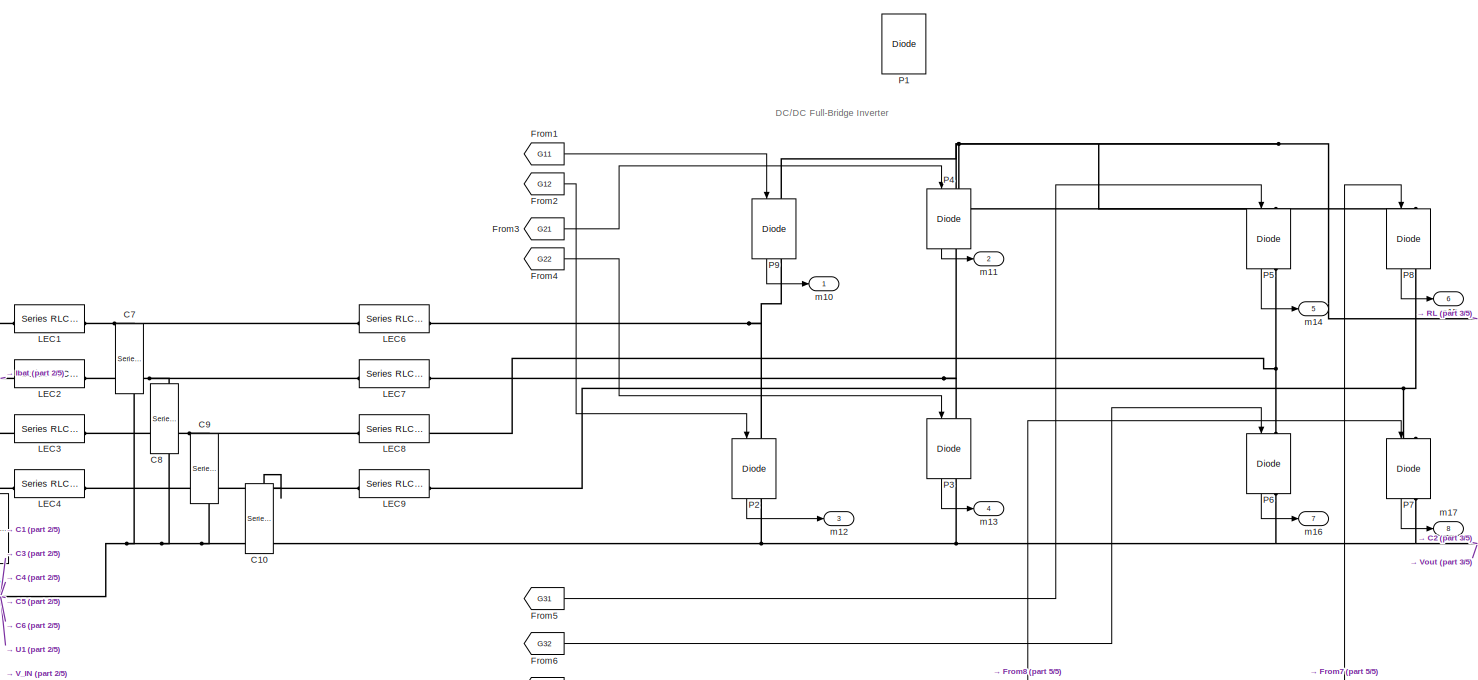
[diagram: root canvas - part 1/5, top center region]
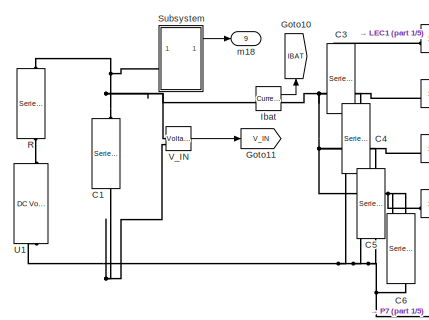
[diagram: root canvas - part 2/5, middle left region]
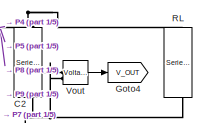
[diagram: root canvas - part 3/5, top right region]
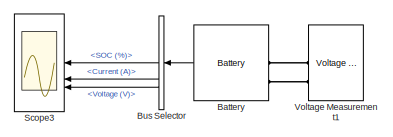
[diagram: root canvas - part 4/5, middle left region]
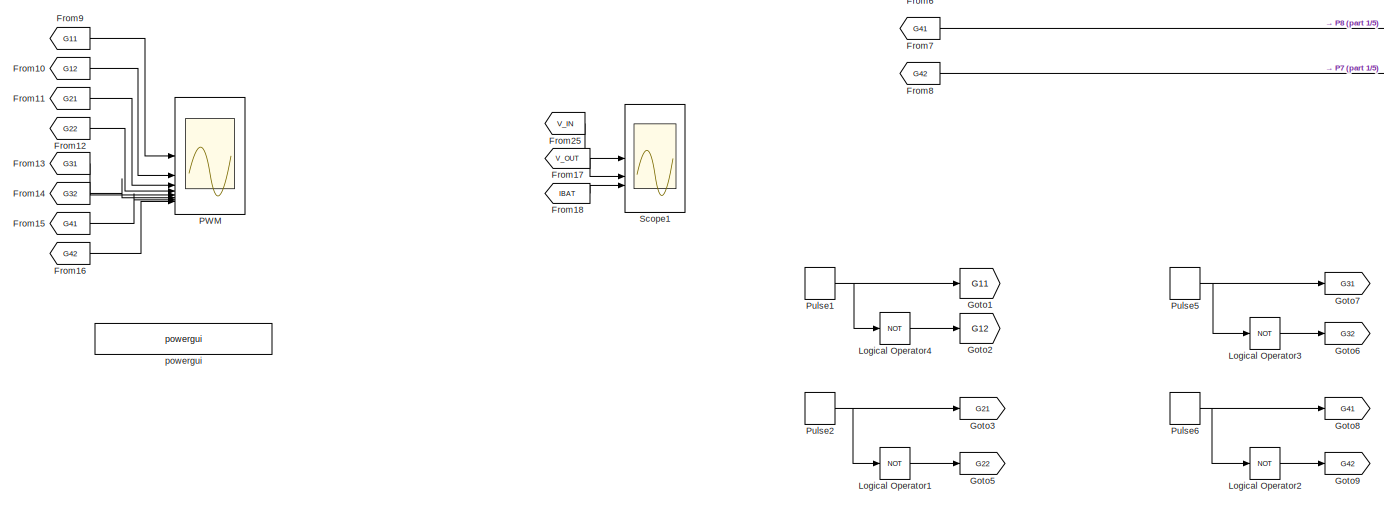
[diagram: root canvas - part 5/5, bottom center region]
MODEL slx_4bfb3feddd5c
KIND model
CONFIG AbsTol = auto
CONFIG EnableMultiTasking = on
CONFIG FixedStep = auto
CONFIG MaxStep = auto
CONFIG MinStep = auto
CONFIG RelTol = 1e-3
CONFIG SampleTimeConstraint = Unconstrained
CONFIG SolverName = ode45
CONFIG StartTime = 0.0
CONFIG StopTime = 1
BLOCK [Reference] Battery  REF=spsBatteryLib/Battery
  Commented = on
  NameLocation = top
  SourceBlock = spsBatteryLib/Battery
  SourceType = Battery
BLOCK [BusSelector] Bus Selector
  Commented = on
  OutputSignals = SOC (%),Current (A),Voltage (V)
BLOCK [Reference] C1  REF=spsSeriesRLCBranchLib/Series RLC Branch
  LibrarySourceBlock = sps_lib/Passives/Series RLC Branch
  NameLocation = right
  SourceBlock = spsSeriesRLCBranchLib/Series RLC Branch
  SourceType = Series RLC Branch
BLOCK [Reference] C10  REF=spsSeriesRLCBranchLib/Series RLC Branch
  LibrarySourceBlock = sps_lib/Passives/Series RLC Branch
  NameLocation = right
  SourceBlock = spsSeriesRLCBranchLib/Series RLC Branch
  SourceType = Series RLC Branch
BLOCK [Reference] C2  REF=spsSeriesRLCBranchLib/Series RLC Branch
  LibrarySourceBlock = sps_lib/Passives/Series RLC Branch
  NameLocation = left
  SourceBlock = spsSeriesRLCBranchLib/Series RLC Branch
  SourceType = Series RLC Branch
BLOCK [Reference] C3  REF=spsSeriesRLCBranchLib/Series RLC Branch
  LibrarySourceBlock = sps_lib/Passives/Series RLC Branch
  NameLocation = right
  SourceBlock = spsSeriesRLCBranchLib/Series RLC Branch
  SourceType = Series RLC Branch
BLOCK [Reference] C4  REF=spsSeriesRLCBranchLib/Series RLC Branch
  LibrarySourceBlock = sps_lib/Passives/Series RLC Branch
  NameLocation = right
  SourceBlock = spsSeriesRLCBranchLib/Series RLC Branch
  SourceType = Series RLC Branch
BLOCK [Reference] C5  REF=spsSeriesRLCBranchLib/Series RLC Branch
  LibrarySourceBlock = sps_lib/Passives/Series RLC Branch
  NameLocation = right
  SourceBlock = spsSeriesRLCBranchLib/Series RLC Branch
  SourceType = Series RLC Branch
BLOCK [Reference] C6  REF=spsSeriesRLCBranchLib/Series RLC Branch
  LibrarySourceBlock = sps_lib/Passives/Series RLC Branch
  NameLocation = right
  SourceBlock = spsSeriesRLCBranchLib/Series RLC Branch
  SourceType = Series RLC Branch
BLOCK [Reference] C7  REF=spsSeriesRLCBranchLib/Series RLC Branch
  LibrarySourceBlock = sps_lib/Passives/Series RLC Branch
  NameLocation = right
  SourceBlock = spsSeriesRLCBranchLib/Series RLC Branch
  SourceType = Series RLC Branch
BLOCK [Reference] C8  REF=spsSeriesRLCBranchLib/Series RLC Branch
  LibrarySourceBlock = sps_lib/Passives/Series RLC Branch
  NameLocation = right
  SourceBlock = spsSeriesRLCBranchLib/Series RLC Branch
  SourceType = Series RLC Branch
BLOCK [Reference] C9  REF=spsSeriesRLCBranchLib/Series RLC Branch
  LibrarySourceBlock = sps_lib/Passives/Series RLC Branch
  NameLocation = right
  SourceBlock = spsSeriesRLCBranchLib/Series RLC Branch
  SourceType = Series RLC Branch
BLOCK [From] From1
  GotoTag = G11
  NameLocation = top
BLOCK [From] From10
  GotoTag = G12
  NameLocation = top
BLOCK [From] From11
  GotoTag = G21
  NameLocation = top
  TagVisibility = global
BLOCK [From] From12
  GotoTag = G22
  NameLocation = top
  TagVisibility = global
BLOCK [From] From13
  GotoTag = G31
  NameLocation = top
  TagVisibility = global
BLOCK [From] From14
  GotoTag = G32
  NameLocation = top
  TagVisibility = global
BLOCK [From] From15
  GotoTag = G41
  NameLocation = top
  TagVisibility = global
BLOCK [From] From16
  GotoTag = G42
  NameLocation = top
  TagVisibility = global
BLOCK [From] From17
  GotoTag = V_OUT
  TagVisibility = global
BLOCK [From] From18
  GotoTag = IBAT
  TagVisibility = global
BLOCK [From] From2
  GotoTag = G12
  NameLocation = top
BLOCK [From] From25
  GotoTag = V_IN
  NameLocation = top
  TagVisibility = global
BLOCK [From] From3
  GotoTag = G21
  NameLocation = top
  TagVisibility = global
BLOCK [From] From4
  GotoTag = G22
  NameLocation = top
  TagVisibility = global
BLOCK [From] From5
  GotoTag = G31
  NameLocation = top
  TagVisibility = global
BLOCK [From] From6
  GotoTag = G32
  NameLocation = top
  TagVisibility = global
BLOCK [From] From7
  GotoTag = G41
  NameLocation = top
  TagVisibility = global
BLOCK [From] From8
  GotoTag = G42
  NameLocation = top
  TagVisibility = global
BLOCK [From] From9
  GotoTag = G11
  NameLocation = top
BLOCK [Goto] Goto1
  GotoTag = G11
BLOCK [Goto] Goto10
  GotoTag = IBAT
  NameLocation = right
  TagVisibility = global
BLOCK [Goto] Goto11
  GotoTag = V_IN
  TagVisibility = global
BLOCK [Goto] Goto2
  GotoTag = G12
BLOCK [Goto] Goto3
  GotoTag = G21
  TagVisibility = global
BLOCK [Goto] Goto4
  GotoTag = V_OUT
  TagVisibility = global
BLOCK [Goto] Goto5
  GotoTag = G22
  TagVisibility = global
BLOCK [Goto] Goto6
  GotoTag = G32
  TagVisibility = global
BLOCK [Goto] Goto7
  GotoTag = G31
  TagVisibility = global
BLOCK [Goto] Goto8
  GotoTag = G41
  TagVisibility = global
BLOCK [Goto] Goto9
  GotoTag = G42
  TagVisibility = global
BLOCK [Reference] Ibat  REF=spsCurrentMeasurementLib/Current Measurement
  SourceBlock = spsCurrentMeasurementLib/Current Measurement
  SourceType = Current Measurement
  UserDataPersistent = on
BLOCK [Reference] LEC1  REF=spsSeriesRLCBranchLib/Series RLC Branch
  LibrarySourceBlock = sps_lib/Passives/Series RLC Branch
  SourceBlock = spsSeriesRLCBranchLib/Series RLC Branch
  SourceType = Series RLC Branch
BLOCK [Reference] LEC2  REF=spsSeriesRLCBranchLib/Series RLC Branch
  LibrarySourceBlock = sps_lib/Passives/Series RLC Branch
  SourceBlock = spsSeriesRLCBranchLib/Series RLC Branch
  SourceType = Series RLC Branch
BLOCK [Reference] LEC3  REF=spsSeriesRLCBranchLib/Series RLC Branch
  LibrarySourceBlock = sps_lib/Passives/Series RLC Branch
  SourceBlock = spsSeriesRLCBranchLib/Series RLC Branch
  SourceType = Series RLC Branch
BLOCK [Reference] LEC4  REF=spsSeriesRLCBranchLib/Series RLC Branch
  LibrarySourceBlock = sps_lib/Passives/Series RLC Branch
  SourceBlock = spsSeriesRLCBranchLib/Series RLC Branch
  SourceType = Series RLC Branch
BLOCK [Reference] LEC6  REF=spsSeriesRLCBranchLib/Series RLC Branch
  LibrarySourceBlock = sps_lib/Passives/Series RLC Branch
  SourceBlock = spsSeriesRLCBranchLib/Series RLC Branch
  SourceType = Series RLC Branch
BLOCK [Reference] LEC7  REF=spsSeriesRLCBranchLib/Series RLC Branch
  LibrarySourceBlock = sps_lib/Passives/Series RLC Branch
  SourceBlock = spsSeriesRLCBranchLib/Series RLC Branch
  SourceType = Series RLC Branch
BLOCK [Reference] LEC8  REF=spsSeriesRLCBranchLib/Series RLC Branch
  LibrarySourceBlock = sps_lib/Passives/Series RLC Branch
  SourceBlock = spsSeriesRLCBranchLib/Series RLC Branch
  SourceType = Series RLC Branch
BLOCK [Reference] LEC9  REF=spsSeriesRLCBranchLib/Series RLC Branch
  LibrarySourceBlock = sps_lib/Passives/Series RLC Branch
  SourceBlock = spsSeriesRLCBranchLib/Series RLC Branch
  SourceType = Series RLC Branch
BLOCK [Logic] Logical Operator1
  AllPortsSameDT = off
  Inputs = 1
  Operator = NOT
  OutDataTypeStr = boolean
BLOCK [Logic] Logical Operator2
  AllPortsSameDT = off
  Inputs = 1
  Operator = NOT
  OutDataTypeStr = boolean
BLOCK [Logic] Logical Operator3
  AllPortsSameDT = off
  Inputs = 1
  Operator = NOT
  OutDataTypeStr = boolean
BLOCK [Logic] Logical Operator4
  AllPortsSameDT = off
  Inputs = 1
  Operator = NOT
  OutDataTypeStr = boolean
BLOCK [Reference] P1  REF=spsIGBTDiodeLib/IGBT//Diode
  LibrarySourceBlock = sps_lib/Power Electronics/IGBT//Diode
  NameLocation = left
  SourceBlock = spsIGBTDiodeLib/IGBT//Diode
  SourceType = IGBT/Diode
BLOCK [Reference] P2  REF=spsIGBTDiodeLib/IGBT//Diode
  LibrarySourceBlock = sps_lib/Power Electronics/IGBT//Diode
  NameLocation = left
  SourceBlock = spsIGBTDiodeLib/IGBT//Diode
  SourceType = IGBT/Diode
BLOCK [Reference] P3  REF=spsIGBTDiodeLib/IGBT//Diode
  LibrarySourceBlock = sps_lib/Power Electronics/IGBT//Diode
  NameLocation = left
  SourceBlock = spsIGBTDiodeLib/IGBT//Diode
  SourceType = IGBT/Diode
BLOCK [Reference] P4  REF=spsIGBTDiodeLib/IGBT//Diode
  LibrarySourceBlock = sps_lib/Power Electronics/IGBT//Diode
  NameLocation = left
  SourceBlock = spsIGBTDiodeLib/IGBT//Diode
  SourceType = IGBT/Diode
BLOCK [Reference] P5  REF=spsIGBTDiodeLib/IGBT//Diode
  LibrarySourceBlock = sps_lib/Power Electronics/IGBT//Diode
  NameLocation = left
  SourceBlock = spsIGBTDiodeLib/IGBT//Diode
  SourceType = IGBT/Diode
BLOCK [Reference] P6  REF=spsIGBTDiodeLib/IGBT//Diode
  LibrarySourceBlock = sps_lib/Power Electronics/IGBT//Diode
  NameLocation = left
  SourceBlock = spsIGBTDiodeLib/IGBT//Diode
  SourceType = IGBT/Diode
BLOCK [Reference] P7  REF=spsIGBTDiodeLib/IGBT//Diode
  LibrarySourceBlock = sps_lib/Power Electronics/IGBT//Diode
  NameLocation = left
  SourceBlock = spsIGBTDiodeLib/IGBT//Diode
  SourceType = IGBT/Diode
BLOCK [Reference] P8  REF=spsIGBTDiodeLib/IGBT//Diode
  LibrarySourceBlock = sps_lib/Power Electronics/IGBT//Diode
  NameLocation = left
  SourceBlock = spsIGBTDiodeLib/IGBT//Diode
  SourceType = IGBT/Diode
BLOCK [Reference] P9  REF=spsIGBTDiodeLib/IGBT//Diode
  LibrarySourceBlock = sps_lib/Power Electronics/IGBT//Diode
  NameLocation = left
  SourceBlock = spsIGBTDiodeLib/IGBT//Diode
  SourceType = IGBT/Diode
BLOCK [Scope] PWM
  Floating = off
  NumInputPorts = 8
  ScopeSpecificationString = Simulink.scopes.TimeScopeBlockCfg('CurrentConfiguration', extmgr.ConfigurationSet(extmgr.Configuration('Core','General UI',true,'DisplayFullSourceName',true),extmgr.Configuration('Core','Source UI',true),extmgr.Configuration('Sources','WiredSimulink',true,'DataLogging',true,'DataLoggingVariableName','ScopeData1','DataLoggingSaveFormat','StructureWithTime','DataLoggingMaxPoints','500000000','DataLo...<+7092ch>
BLOCK [DiscretePulseGenerator] Pulse1
  Amplitude = 15
  Period = 40e-6
  PulseType = Time based
  PulseWidth = 20
BLOCK [DiscretePulseGenerator] Pulse2
  Amplitude = 0
  Period = 40e-6
  PhaseDelay = 10e-6
  PulseType = Time based
  PulseWidth = 46
BLOCK [DiscretePulseGenerator] Pulse5
  Amplitude = 0
  Period = 40e-6
  PhaseDelay = 20e-6
  PulseType = Time based
  PulseWidth = 46
BLOCK [DiscretePulseGenerator] Pulse6
  Amplitude = 0
  Period = 40e-6
  PhaseDelay = 30e-6
  PulseType = Time based
  PulseWidth = 46
BLOCK [Reference] R  REF=spsSeriesRLCBranchLib/Series RLC Branch
  LibrarySourceBlock = sps_lib/Passives/Series RLC Branch
  NameLocation = right
  SourceBlock = spsSeriesRLCBranchLib/Series RLC Branch
  SourceType = Series RLC Branch
BLOCK [Reference] RL  REF=spsSeriesRLCBranchLib/Series RLC Branch
  LibrarySourceBlock = sps_lib/Passives/Series RLC Branch
  NameLocation = right
  SourceBlock = spsSeriesRLCBranchLib/Series RLC Branch
  SourceType = Series RLC Branch
BLOCK [Scope] Scope1
  Floating = off
  NumInputPorts = 3
  ScopeSpecificationString = Simulink.scopes.TimeScopeBlockCfg('CurrentConfiguration', extmgr.ConfigurationSet(extmgr.Configuration('Core','General UI',true,'DisplayFullSourceName',true),extmgr.Configuration('Core','Source UI',true),extmgr.Configuration('Sources','WiredSimulink',true,'DataLogging',true,'DataLoggingSaveFormat','StructureWithTime','DataLoggingMaxPoints','500000000','DataLoggingDecimation','1','DataLoggingDecima...<+4398ch>
BLOCK [Scope] Scope3
  Commented = on
  Floating = off
  NumInputPorts = 3
  ScopeSpecificationString = Simulink.scopes.TimeScopeBlockCfg('CurrentConfiguration', extmgr.ConfigurationSet(extmgr.Configuration('Core','General UI',true,'FigureColor',[1 1 1]),extmgr.Configuration('Core','Source UI',true),extmgr.Configuration('Sources','WiredSimulink',true,'DataLoggingVariableName','ScopeData1'),extmgr.Configuration('Visuals','Time Domain',true,'SerializedDisplays',{struct('MinYLimReal','79.90049','MaxYLi...<+3106ch>
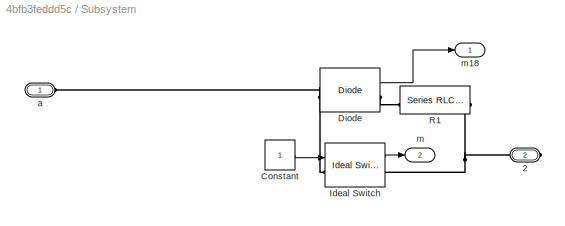
BLOCK [SubSystem] Subsystem
  Commented = on
BLOCK [PMIOPort] Subsystem/2
  Port = 2
  Side = Right
BLOCK [Constant] Subsystem/Constant
BLOCK [Reference] Subsystem/Diode  REF=spsDiodeLib/Diode
  LibrarySourceBlock = sps_lib/Power Electronics/Diode
  SourceBlock = spsDiodeLib/Diode
  SourceType = Diode
BLOCK [Reference] Subsystem/Ideal Switch  REF=spsIdealSwitchLib/Ideal Switch
  LibrarySourceBlock = sps_lib/Power Electronics/Ideal Switch
  SourceBlock = spsIdealSwitchLib/Ideal Switch
  SourceType = Ideal Switch
BLOCK [Reference] Subsystem/R1  REF=spsSeriesRLCBranchLib/Series RLC Branch
  LibrarySourceBlock = sps_lib/Passives/Series RLC Branch
  SourceBlock = spsSeriesRLCBranchLib/Series RLC Branch
  SourceType = Series RLC Branch
BLOCK [PMIOPort] Subsystem/a
  Side = Left
BLOCK [Outport] Subsystem/m
  Port = 2
BLOCK [Outport] Subsystem/m18
BLOCK [Reference] U1  REF=spsDCVoltageSourceLib/DC Voltage Source
  LibrarySourceBlock = sps_lib/Sources/DC Voltage Source
  NameLocation = left
  SourceBlock = spsDCVoltageSourceLib/DC Voltage Source
  SourceType = DC Voltage Source
BLOCK [Reference] V_IN  REF=spsVoltageMeasurementLib/Voltage Measurement
  AttributesFormatString = \n
  LibrarySourceBlock = sps_lib/Sensors and Measurements/Voltage Measurement
  SourceBlock = spsVoltageMeasurementLib/Voltage Measurement
  SourceType = Voltage Measurement
  Tag = PoWeRsYsTeMmEaSuReMeNt
BLOCK [Reference] Voltage Measurement1  REF=spsVoltageMeasurementLib/Voltage Measurement
  Commented = on
  SourceBlock = spsVoltageMeasurementLib/Voltage Measurement
  SourceType = Voltage Measurement
  UserDataPersistent = on
BLOCK [Reference] Vout  REF=spsVoltageMeasurementLib/Voltage Measurement
  AttributesFormatString = \n
  LibrarySourceBlock = sps_lib/Sensors and Measurements/Voltage Measurement
  SourceBlock = spsVoltageMeasurementLib/Voltage Measurement
  SourceType = Voltage Measurement
  Tag = PoWeRsYsTeMmEaSuReMeNt
BLOCK [Outport] m10
BLOCK [Outport] m11
  Port = 2
BLOCK [Outport] m12
  Port = 3
BLOCK [Outport] m13
  Port = 4
BLOCK [Outport] m14
  Port = 5
BLOCK [Outport] m15
  Port = 6
BLOCK [Outport] m16
  Port = 7
BLOCK [Outport] m17
  Port = 8
BLOCK [Outport] m18
  Port = 9
BLOCK [Reference] powergui  REF=spspowerguiLib/powergui
  LibrarySourceBlock = sps_lib/powergui
  SourceBlock = spspowerguiLib/powergui
  SourceType = PSB option menu block
ANNOTATION (root): DC/DC Full-Bridge Inverter
LINE Battery:1 -> Bus Selector:1
LINE Bus Selector:1 -> Scope3:1
LINE Bus Selector:2 -> Scope3:2
LINE Bus Selector:3 -> Scope3:3
LINE From10:1 -> PWM:2
LINE From11:1 -> PWM:3
LINE From12:1 -> PWM:4
LINE From13:1 -> PWM:5
LINE From14:1 -> PWM:6
LINE From15:1 -> PWM:7
LINE From16:1 -> PWM:8
LINE From17:1 -> Scope1:2
LINE From18:1 -> Scope1:3
LINE From1:1 -> P9:1
LINE From25:1 -> Scope1:1
LINE From2:1 -> P2:1
LINE From3:1 -> P4:1
LINE From4:1 -> P3:1
LINE From5:1 -> P5:1
LINE From6:1 -> P6:1
LINE From7:1 -> P8:1
LINE From8:1 -> P7:1
LINE From9:1 -> PWM:1
LINE Ibat:1 -> Goto10:1
LINE Logical Operator1:1 -> Goto5:1
LINE Logical Operator2:1 -> Goto9:1
LINE Logical Operator3:1 -> Goto6:1
LINE Logical Operator4:1 -> Goto2:1
LINE P2:1 -> m12:1
LINE P3:1 -> m13:1
LINE P4:1 -> m11:1
LINE P5:1 -> m14:1
LINE P6:1 -> m16:1
LINE P7:1 -> m17:1
LINE P8:1 -> m15:1
LINE P9:1 -> m10:1
NET Pulse1:1 -> Goto1:1, Logical Operator4:1
NET Pulse2:1 -> Goto3:1, Logical Operator1:1
NET Pulse5:1 -> Goto7:1, Logical Operator3:1
NET Pulse6:1 -> Goto8:1, Logical Operator2:1
LINE Subsystem/Constant:1 -> Subsystem/Ideal Switch:1
LINE Subsystem/Diode:1 -> Subsystem/m18:1
LINE Subsystem/Ideal Switch:1 -> Subsystem/m:1
LINE Subsystem:1 -> m18:1
LINE V_IN:1 -> Goto11:1
LINE Vout:1 -> Goto4:1
PLINE Battery:LConn1 -- Voltage Measurement1:LConn1
PLINE Battery:LConn2 -- Voltage Measurement1:LConn2
PNET net1: C10:LConn1 -- LEC4:RConn1 -- LEC9:LConn1
PNET net2: C10:RConn1 -- C1:RConn1 -- C2:RConn1 -- C3:RConn1 -- C4:RConn1 -- C5:RConn1 -- C6:RConn1 -- C7:RConn1 -- C8:RConn1 -- C9:RConn1 -- P2:RConn1 -- P3:RConn1 -- P6:RConn1 -- P7:RConn1 -- RL:RConn1 -- U1:LConn1 -- V_IN:LConn2 -- Vout:LConn2
PNET net3: C1:LConn1 -- Ibat:LConn1 -- R:LConn1 -- Subsystem:LConn1 -- V_IN:LConn1
PNET net4: C2:LConn1 -- P4:LConn1 -- P5:LConn1 -- P8:LConn1 -- P9:LConn1 -- RL:LConn1 -- Vout:LConn1
PNET net5: C4:LConn1 -- C5:LConn1 -- C6:LConn1 -- Ibat:RConn1 -- LEC1:LConn1 -- LEC2:LConn1 -- LEC3:LConn1 -- LEC4:LConn1
PNET net6: C7:LConn1 -- LEC1:RConn1 -- LEC6:LConn1
PNET net7: C8:LConn1 -- LEC2:RConn1 -- LEC7:LConn1
PNET net8: C9:LConn1 -- LEC3:RConn1 -- LEC8:LConn1
PNET net9: LEC6:RConn1 -- P2:LConn1 -- P9:RConn1
PNET net10: LEC7:RConn1 -- P3:LConn1 -- P4:RConn1
PNET net11: LEC8:RConn1 -- P5:RConn1 -- P6:LConn1
PNET net12: LEC9:RConn1 -- P7:LConn1 -- P8:RConn1
PLINE R:RConn1 -- U1:RConn1
PNET net13: Subsystem/2:RConn1 -- Subsystem/Ideal Switch:RConn1 -- Subsystem/R1:LConn1
PNET net14: Subsystem/Diode:LConn1 -- Subsystem/Ideal Switch:LConn1 -- Subsystem/a:RConn1
PLINE Subsystem/Diode:RConn1 -- Subsystem/R1:RConn1
note: NET lines group one-source signal fan-out (src -> all destinations, sorted); 1:1 wires keep LINE; PNET lines group multi-terminal physical nets as a canonical sorted terminal list (undirected conserving connections); 2-terminal nets keep the pairwise PLINE form
